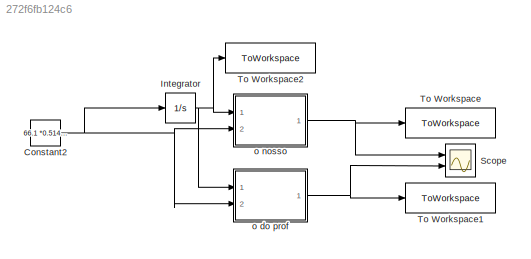
MODEL slx_272f6fb124c6
KIND model
CONFIG AbsTol = auto
CONFIG EnableMultiTasking = off
CONFIG FixedStep = auto
CONFIG MaxStep = auto
CONFIG MinStep = auto
CONFIG RelTol = 1e-3
CONFIG SampleTimeConstraint = Unconstrained
CONFIG Solver = VariableStepAuto
CONFIG SolverName = VariableStepAuto
CONFIG StartTime = 0.0
CONFIG StopTime = 100
BLOCK [Constant] Constant2
  Value = 66.1 *0.514444444
BLOCK [Integrator] Integrator
  Ports = [1, 1]
BLOCK [Scope] Scope
  Floating = off
  NumInputPorts = 2
  Ports = [2]
  ScopeSpecificationString = Simulink.scopes.TimeScopeBlockCfg('CurrentConfiguration', extmgr.ConfigurationSet(extmgr.Configuration('Core','General UI',true),extmgr.Configuration('Core','Source UI',true),extmgr.Configuration('Sources','WiredSimulink',true,'DataLoggingSaveFormat','Array','DataLoggingLimitDataPoints',true,'DataLoggingDecimation','1'),extmgr.Configuration('Visuals','Time Domain',true,'SerializedDisplays',{struct...<+1625ch>
BLOCK [ToWorkspace] To Workspace
  FixptAsFi = on
  MaxDataPoints = inf
  Ports = [1]
  SampleTime = -1
  VariableName = solo_nosso
BLOCK [ToWorkspace] To Workspace1
  FixptAsFi = on
  MaxDataPoints = inf
  Ports = [1]
  SampleTime = -1
  VariableName = solo_prof
BLOCK [ToWorkspace] To Workspace2
  FixptAsFi = on
  MaxDataPoints = inf
  Ports = [1]
  SampleTime = -1
  VariableName = dist
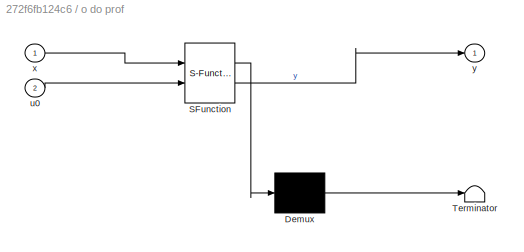
BLOCK [SubSystem] o do prof
  ErrorFcn = Stateflow.Translate.translate
  PermitHierarchicalResolution = ExplicitOnly
  Ports = [2, 1]
  RequestExecContextInheritance = off
  SFBlockType = MATLAB Function
  TreatAsAtomicUnit = on
BLOCK [Demux] o do prof/ Demux 
  Outputs = 1
  Ports = [1, 1]
BLOCK [S-Function] o do prof/ SFunction 
  EnableBusSupport = on
  FunctionName = sf_sfun
  PortCounts = [2 2]
  Ports = [2, 2]
  SFcnIsStateOwnerBlock = off
  SFunctionDeploymentMode = off
  Tag = Stateflow S-Function 1
BLOCK [Terminator] o do prof/ Terminator 
BLOCK [Inport] o do prof/u0
  Port = 2
BLOCK [Inport] o do prof/x
BLOCK [Outport] o do prof/y
  VectorParamsAs1DForOutWhenUnconnected = off
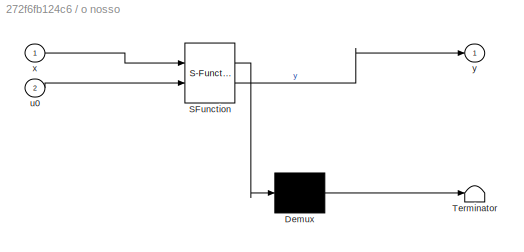
BLOCK [SubSystem] o nosso
  ErrorFcn = Stateflow.Translate.translate
  PermitHierarchicalResolution = ExplicitOnly
  Ports = [2, 1]
  RequestExecContextInheritance = off
  SFBlockType = MATLAB Function
  TreatAsAtomicUnit = on
BLOCK [Demux] o nosso/ Demux 
  Outputs = 1
  Ports = [1, 1]
BLOCK [S-Function] o nosso/ SFunction 
  EnableBusSupport = on
  FunctionName = sf_sfun
  PortCounts = [2 2]
  Ports = [2, 2]
  SFcnIsStateOwnerBlock = off
  SFunctionDeploymentMode = off
  Tag = Stateflow S-Function 2
BLOCK [Terminator] o nosso/ Terminator 
BLOCK [Inport] o nosso/u0
  Port = 2
BLOCK [Inport] o nosso/x
BLOCK [Outport] o nosso/y
  VectorParamsAs1DForOutWhenUnconnected = off
NET Constant2:1 -> Integrator:1, o do prof:2, o nosso:2
NET Integrator:1 -> To Workspace2:1, o do prof:1, o nosso:1
NET o do prof:1 -> Scope:2, To Workspace1:1
NET o nosso:1 -> Scope:1, To Workspace:1
note: NET lines group one-source signal fan-out (src -> all destinations, sorted); 1:1 wires keep LINE
CHART o nosso states=1 transitions=1
  STATE_LABEL 'eML_blk_kernel()'
  STATE_LABEL 'SCRIPT:\nfunction y = fcn(x, u0)\n\n% if (u<20*u0)\n%    y=(-5/20)*u+5*u0;\n% elseif (20*u0<=u) && (u<40*u0)\n%    y=0;\n% elseif (40*u0<=u) && (u<60*u0)\n%    %y=2.5*u0*sin((3.14159265359/(20*u0))*u) +2.5*u0;\n%    y=5*u0*sin(((u/(20*u0))-2)*pi/2);\n% \n% else\n%     \n%    y=5*u0;\n\nif (x<40*u0)\n   y=(-5/40)*x+5*u0+100;\n   \nelseif (40*u0<=x) && (x<60*u0)\n   y=100;\n   \nelseif (60*u0<=x) && (x<100*u0)\n   %y=2.5...<+249ch>'
CHART o do prof states=1 transitions=1
  STATE_LABEL 'eML_blk_kernel()'
  STATE_LABEL 'SCRIPT:\nfunction y = fcn(x, u0)\n\n% if (u<20*u0)\n%    y=(-5/20)*u+5*u0;\n% elseif (20*u0<=u) && (u<40*u0)\n%    y=0;\n% elseif (40*u0<=u) && (u<60*u0)\n%    %y=2.5*u0*sin((3.14159265359/(20*u0))*u) +2.5*u0;\n%    y=5*u0*sin(((u/(20*u0))-2)*pi/2);\n% \n% else\n%     \n%    y=5*u0;\nif (x<20*u0)\n   y=(-5/20)*x+5*u0;\n   \nelseif (20*u0<=x) && (x<40*u0)\n   y=0;\n   \nelseif (40*u0<=x) && (x<60*u0)\n   %y=2.5*u0*sin(...<+301ch>'
CHART  states=0 transitions=0
CHART  states=0 transitions=0
